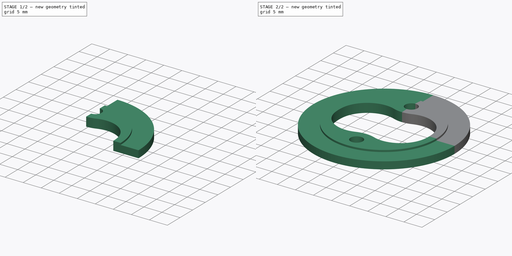
[diagram: build sequence overview — one tinted view per stage of 2, left to right]
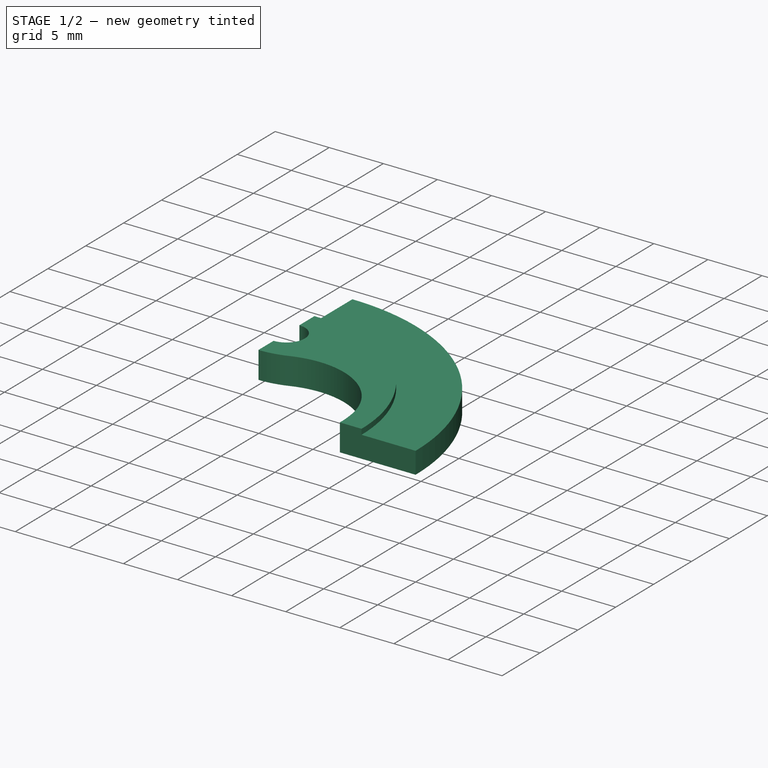
[diagram: stage 1 of 2 — iso view after this stage's code; geometry added in this stage tinted green]
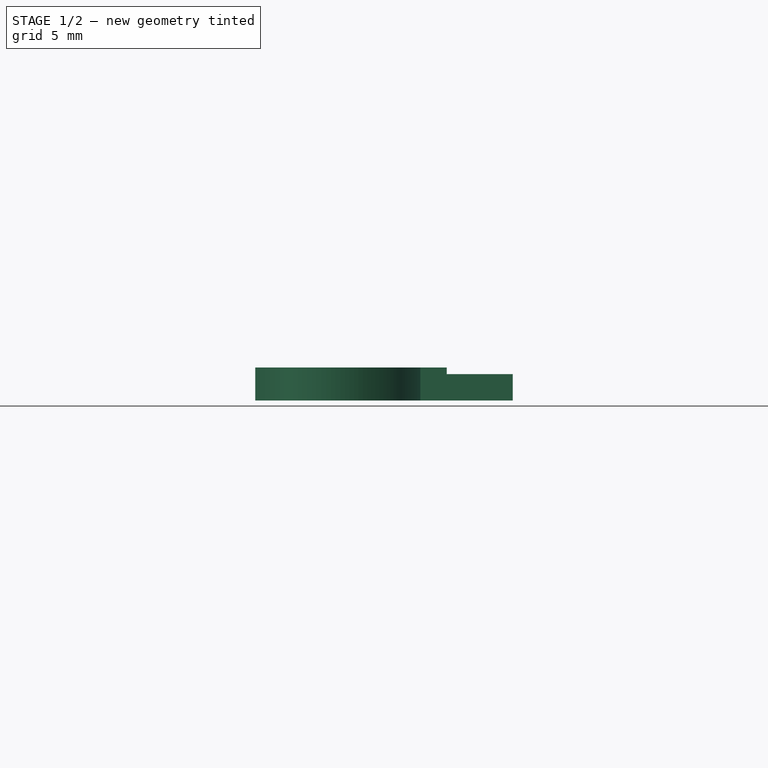
[diagram: stage 1 of 2 — front view after this stage's code; geometry added in this stage tinted green]
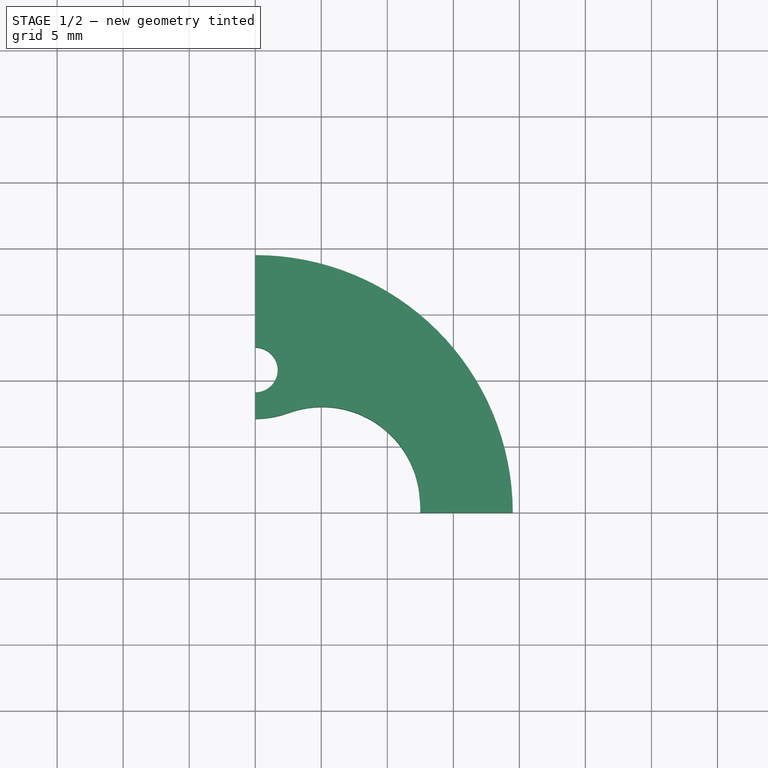
[diagram: stage 1 of 2 — top view after this stage's code; geometry added in this stage tinted green]
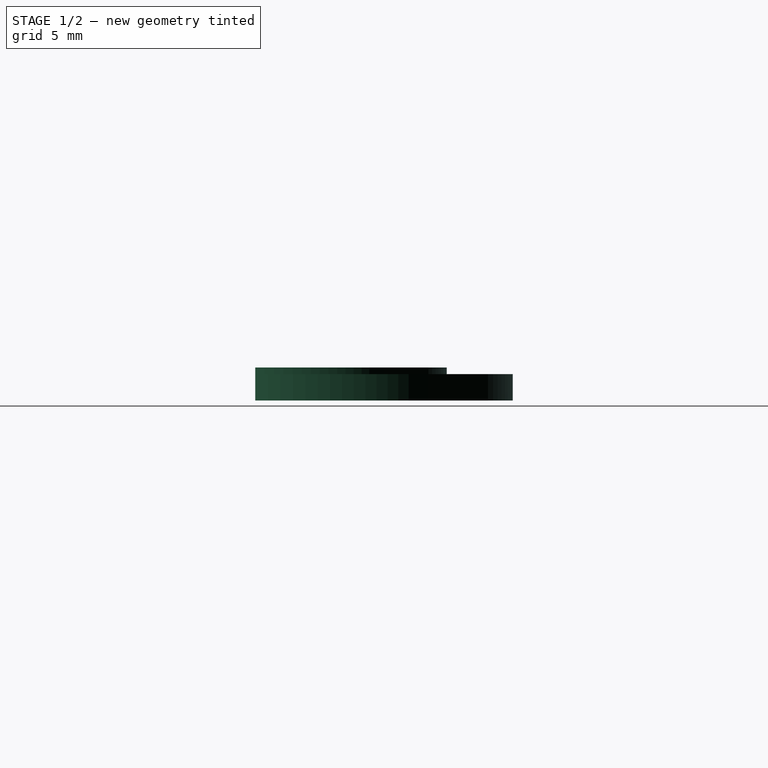
[diagram: stage 1 of 2 — right view after this stage's code; geometry added in this stage tinted green]
FCSTD DOCUMENT  (FreeCAD 0.20R29410 (Git))
Label: wire_protection
License: All rights reserved
LicenseURL: http://en.wikipedia.org/wiki/All_rights_reserved
objects: Sketcher::SketchObject×2, PartDesign::Pad×2, PartDesign::Mirrored×2, PartDesign::MultiTransform×1, PartDesign::Body×1
note: 10 computed .brp shape members not serialized (recipe doc carries the construction recipe); baked Part::Feature solids carry a one-line shape summary decoded from their .brp

FEATURE [Sketcher::SketchObject] Sketch
  FullyConstrained = true
  MapMode = 5
  Support = -> [XY_Plane]
  sketch-geometry (11):
    g0: ArcOfCircle CenterX=0 CenterY=0 CenterZ=0 NormalX=0 NormalY=0 NormalZ=1 AngleXU=0 Radius=14.5 StartAngle=0 EndAngle=1.5708
    g1: ArcOfCircle CenterX=0 CenterY=10.8 CenterZ=0 NormalX=0 NormalY=0 NormalZ=1 AngleXU=0 Radius=1.7 StartAngle=4.71239 EndAngle=7.85398
    g2: LineSegment StartX=5e-16 StartY=12.5 StartZ=0 EndX=0 EndY=14.5 EndZ=0
    g3: LineSegment StartX=-3e-16 StartY=9.1 StartZ=0 EndX=-3e-16 EndY=7.1 EndZ=0
    g4: LineSegment StartX=12.5 StartY=0 StartZ=0 EndX=14.5 EndY=0 EndZ=0
    g5: ArcOfCircle CenterX=0 CenterY=0 CenterZ=0 NormalX=0 NormalY=0 NormalZ=1 AngleXU=0 Radius=12.5 StartAngle=0 EndAngle=0.116695
    g6: ArcOfCircle CenterX=5.06531 CenterY=0.593793 CenterZ=0 NormalX=0 NormalY=0 NormalZ=1 AngleXU=0 Radius=7.4 StartAngle=0.116695 EndAngle=1.92011
    g7: ArcOfCircle CenterX=0 CenterY=14.5 CenterZ=0 NormalX=0 NormalY=0 NormalZ=1 AngleXU=0 Radius=7.4 StartAngle=4.71239 EndAngle=5.0617
    g8: ArcOfCircle CenterX=0 CenterY=0 CenterZ=0 NormalX=0 NormalY=0 NormalZ=1 AngleXU=0 Radius=19.5 StartAngle=0 EndAngle=1.5708
    g9: LineSegment StartX=0 StartY=14.5 StartZ=0 EndX=1.2e-15 EndY=19.5 EndZ=0
    g10: LineSegment StartX=14.5 StartY=0 StartZ=0 EndX=19.5 EndY=0 EndZ=0
  constraints (32):
    c: Coincident(g0,g-1)
    c: PointOnObject(g0,g-1)
    c: PointOnObject(g0,g-2)
    c: PointOnObject(g1,g-2)
    c: PointOnObject(g1,g-2)
    c: PointOnObject(g1,g-2)
    c: Coincident(g2,g1)
    c: Coincident(g2,g0)
    c: Coincident(g3,g1)
    c: Coincident(g4,g0)
    c: Diameter(g0) = 29
    c: DistanceY(g2,g2) = 2
    c: Diameter(g1) = 3.4
    c: Coincident(g5,g0)
    c: Coincident(g7,g0)
    c: Coincident(g4,g5)
    c: Coincident(g3,g7)
    c: Tangent(g6,g5) = -1.5708
    c: Equal(g3,g2)
    c: Equal(g4,g2)
    c: Equal(g6,g7)
    c: Tangent(g7,g6) = 1.5708
    c: Vertical(g3)
    c: Horizontal(g4)
    c: Coincident(g8,g5)
    c: PointOnObject(g8,g-1)
    c: PointOnObject(g8,g-2)
    c: Coincident(g9,g2)
    c: Coincident(g9,g8)
    c: Coincident(g10,g4)
    c: Coincident(g10,g8)
    c: DistanceY(g9,g9) = 5
FEATURE [PartDesign::Pad] Pad
  Direction = (0,0,1)
  Length = 2
  Length2 = 10
  Profile = -> Sketch
  ReferenceAxis = -> Sketch [N_Axis]
  Type = 0
FEATURE [Sketcher::SketchObject] Sketch001
  FullyConstrained = true
  MapMode = 5
  Support = -> [XY_Plane]
  expr: Constraints[10] = Sketch.Constraints[10]
  expr: Constraints[11] = Sketch.Constraints[11]
  expr: Constraints[12] = Sketch.Constraints[12]
  expr: Constraints[31] = Sketch.Constraints[31]
  sketch-geometry (11):
    g0: ArcOfCircle CenterX=0 CenterY=0 CenterZ=0 NormalX=0 NormalY=0 NormalZ=1 AngleXU=0 Radius=14.5 StartAngle=0 EndAngle=1.5708
    g1: ArcOfCircle CenterX=0 CenterY=10.8 CenterZ=0 NormalX=0 NormalY=0 NormalZ=1 AngleXU=0 Radius=1.7 StartAngle=4.71239 EndAngle=7.85398
    g2: LineSegment StartX=5e-16 StartY=12.5 StartZ=0 EndX=9e-16 EndY=14.5 EndZ=0
    g3: LineSegment StartX=-5e-16 StartY=9.1 StartZ=0 EndX=-5e-16 EndY=7.1 EndZ=0
    g4: LineSegment StartX=12.5 StartY=0 StartZ=0 EndX=14.5 EndY=0 EndZ=0
    g5: ArcOfCircle CenterX=0 CenterY=0 CenterZ=0 NormalX=0 NormalY=0 NormalZ=1 AngleXU=0 Radius=12.5 StartAngle=0 EndAngle=0.116695
    g6: ArcOfCircle CenterX=5.06531 CenterY=0.593793 CenterZ=0 NormalX=0 NormalY=0 NormalZ=1 AngleXU=0 Radius=7.4 StartAngle=0.116695 EndAngle=1.92011
    g7: ArcOfCircle CenterX=9e-16 CenterY=14.5 CenterZ=0 NormalX=0 NormalY=0 NormalZ=1 AngleXU=0 Radius=7.4 StartAngle=4.71239 EndAngle=5.0617
    g8: ArcOfCircle CenterX=0 CenterY=0 CenterZ=0 NormalX=0 NormalY=0 NormalZ=1 AngleXU=0 Radius=19.5 StartAngle=0 EndAngle=1.5708
    g9: LineSegment StartX=9e-16 StartY=14.5 StartZ=0 EndX=1.2e-15 EndY=19.5 EndZ=0
    g10: LineSegment StartX=14.5 StartY=0 StartZ=0 EndX=19.5 EndY=0 EndZ=0
  constraints (32):
    c: Coincident(g0,g-1)
    c: PointOnObject(g0,g-1)
    c: PointOnObject(g0,g-2)
    c: PointOnObject(g1,g-2)
    c: PointOnObject(g1,g-2)
    c: PointOnObject(g1,g-2)
    c: Coincident(g2,g1)
    c: Coincident(g2,g0)
    c: Coincident(g3,g1)
    c: Coincident(g4,g0)
    c: Diameter(g0) = 29
    c: DistanceY(g2,g2) = 2
    c: Diameter(g1) = 3.4
    c: Coincident(g5,g0)
    c: Coincident(g7,g0)
    c: Coincident(g4,g5)
    c: Coincident(g3,g7)
    c: Tangent(g6,g5) = -1.5708
    c: Equal(g3,g2)
    c: Equal(g4,g2)
    c: Equal(g6,g7)
    c: Tangent(g7,g6) = 1.5708
    c: Vertical(g3)
    c: Horizontal(g4)
    c: Coincident(g8,g5)
    c: PointOnObject(g8,g-1)
    c: PointOnObject(g8,g-2)
    c: Coincident(g9,g2)
    c: Coincident(g9,g8)
    c: Coincident(g10,g4)
    c: Coincident(g10,g8)
    c: DistanceY(g9,g9) = 5
FEATURE [PartDesign::Pad] Pad001
  BaseFeature = -> Pad
  Direction = (0,0,1)
  Length = 2.5
  Length2 = 10
  Profile = -> Sketch001
  ReferenceAxis = -> Sketch001 [N_Axis]
  Type = 0
  expr: Length = Pad.Length + 0.5mm
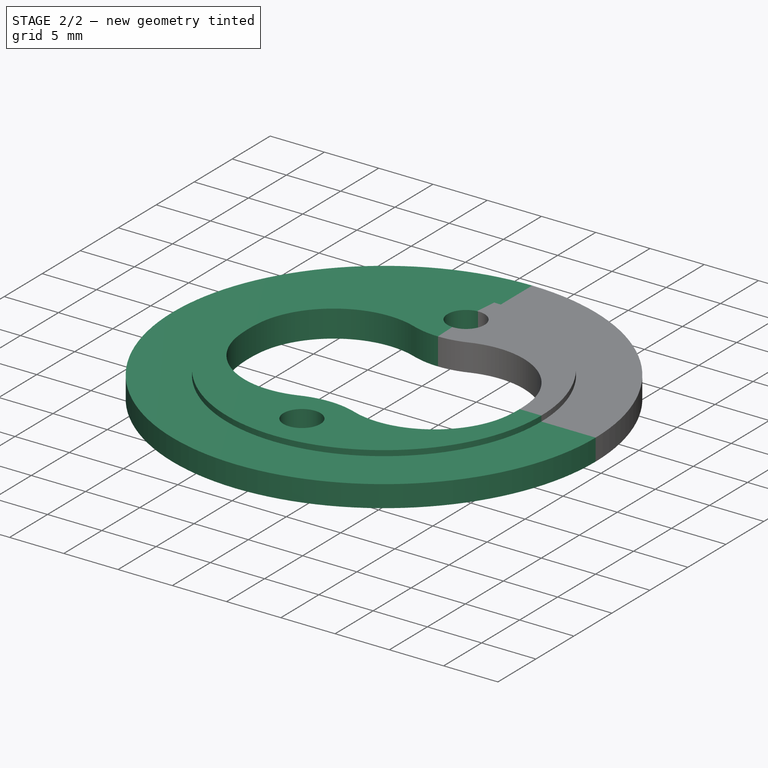
[diagram: stage 2 of 2 — iso view after this stage's code; geometry added in this stage tinted green]
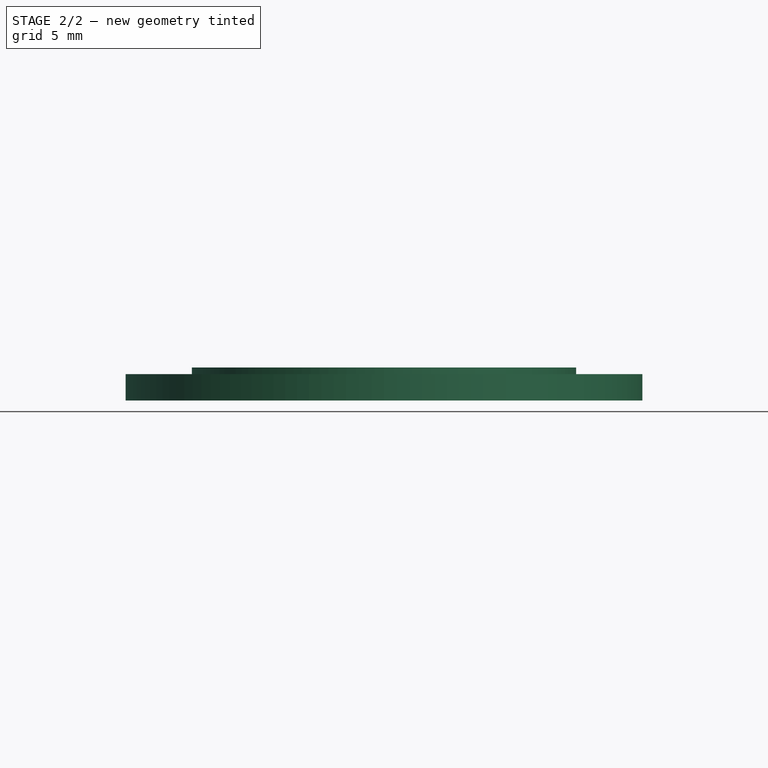
[diagram: stage 2 of 2 — front view after this stage's code; geometry added in this stage tinted green]
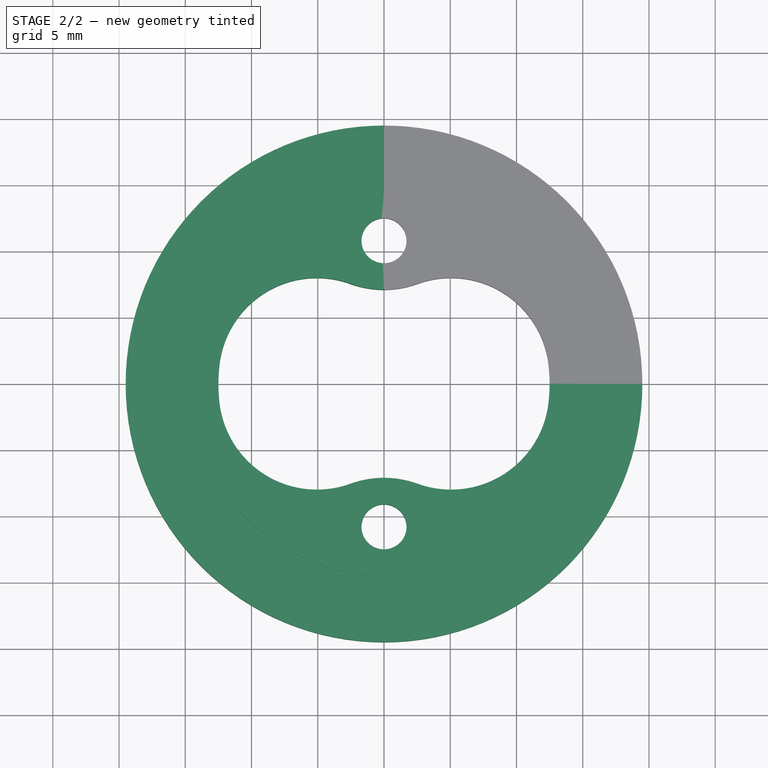
[diagram: stage 2 of 2 — top view after this stage's code; geometry added in this stage tinted green]
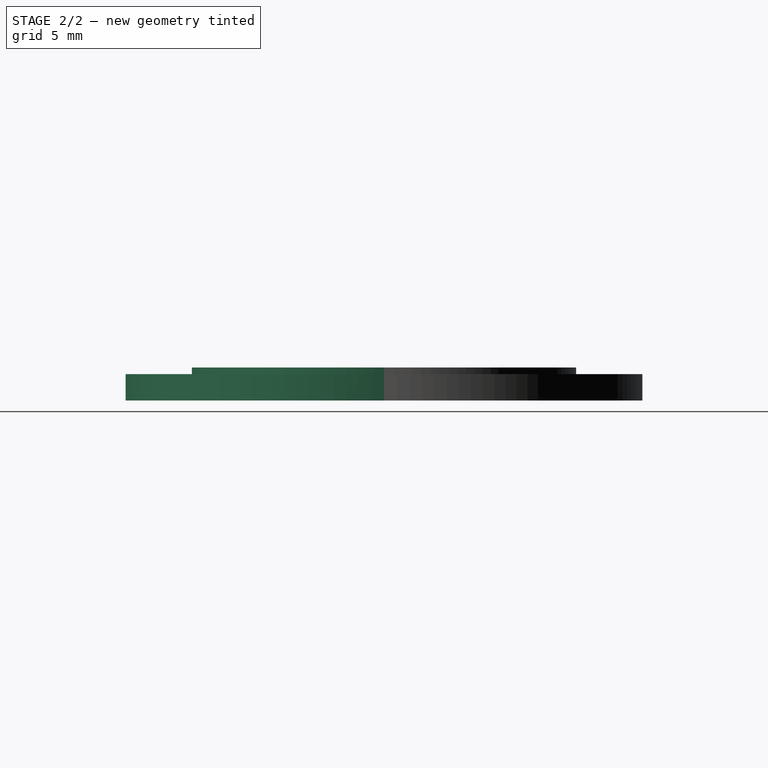
[diagram: stage 2 of 2 — right view after this stage's code; geometry added in this stage tinted green]
FEATURE [PartDesign::Mirrored] Mirrored
  MirrorPlane = -> Sketch [V_Axis]
FEATURE [PartDesign::Mirrored] Mirrored001
  MirrorPlane = -> Sketch [H_Axis]
FEATURE [PartDesign::MultiTransform] MultiTransform
  BaseFeature = -> Pad001
  Originals = -> [Pad,Pad001]
  Transformations = -> [Mirrored,Mirrored001]
FEATURE [PartDesign::Body] Body
  Group = -> [Sketch,Pad,Sketch001,Pad001,MultiTransform,Mirrored,Mirrored001]
  Origin = -> Origin
  Tip = -> MultiTransform
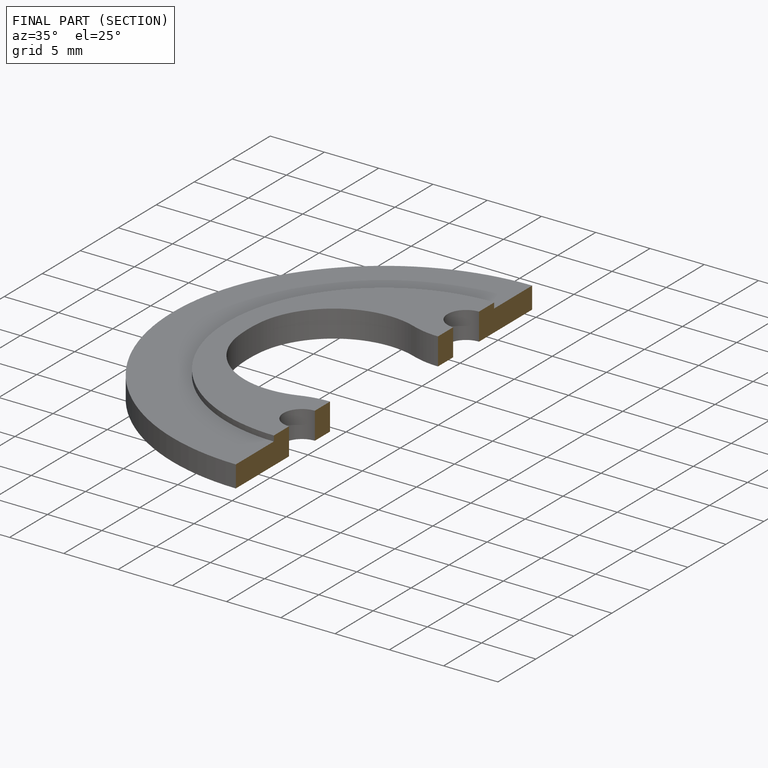
[diagram: finished part — half-section view (interior)]
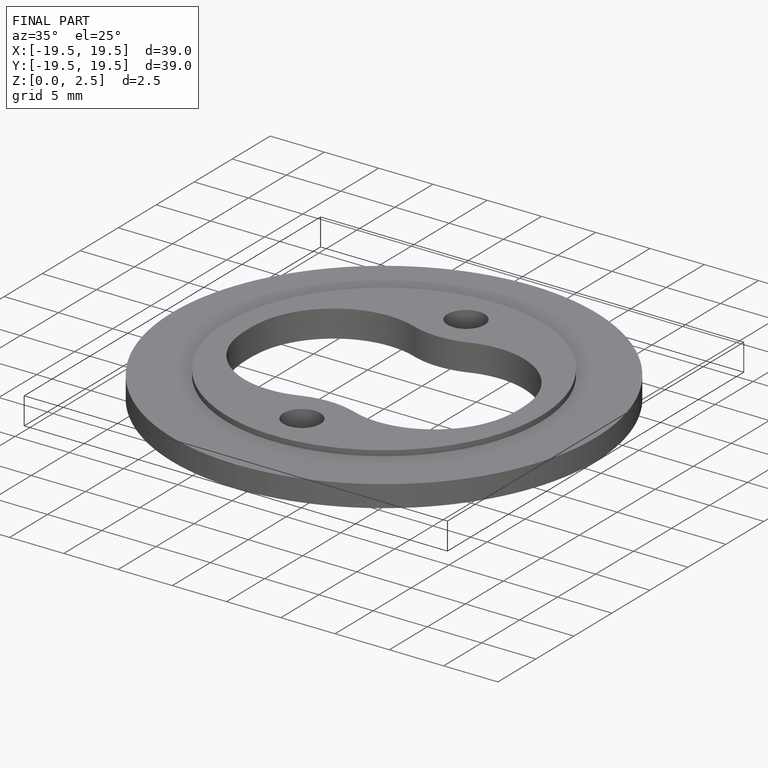
[diagram: finished part — iso view with bounding-box wireframe]
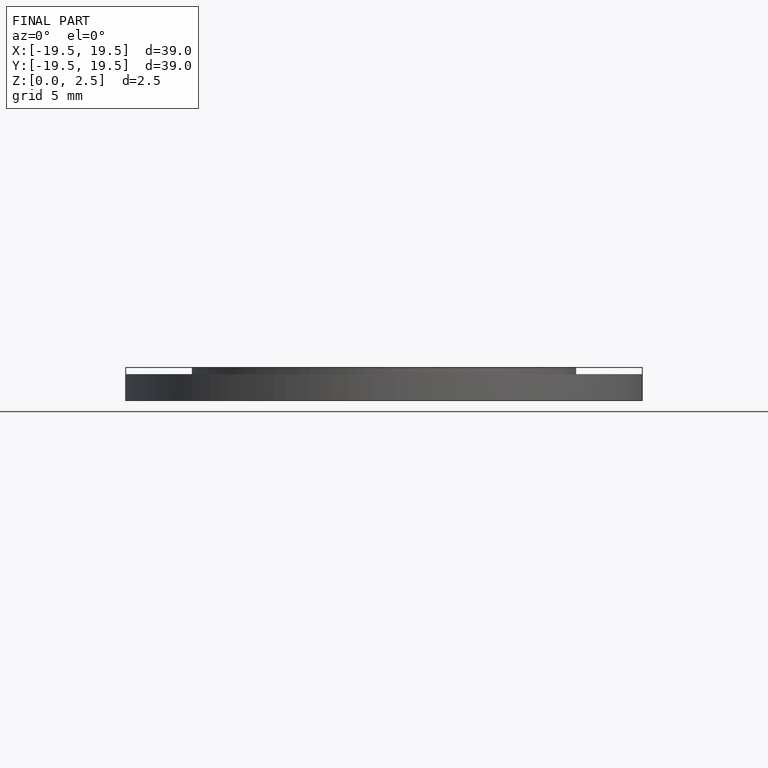
[diagram: finished part — front view with bounding-box wireframe]
